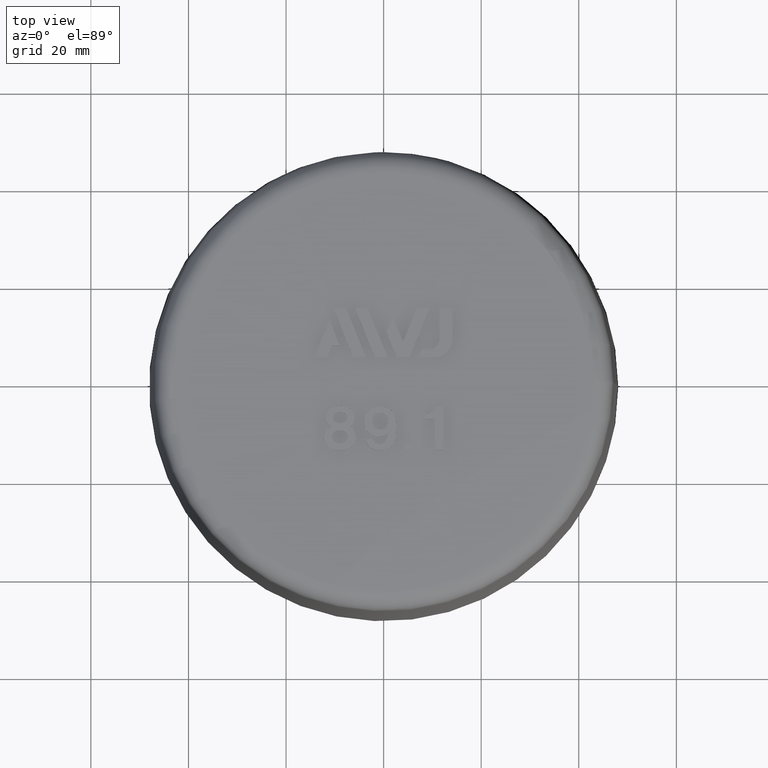
[diagram: clean part render]
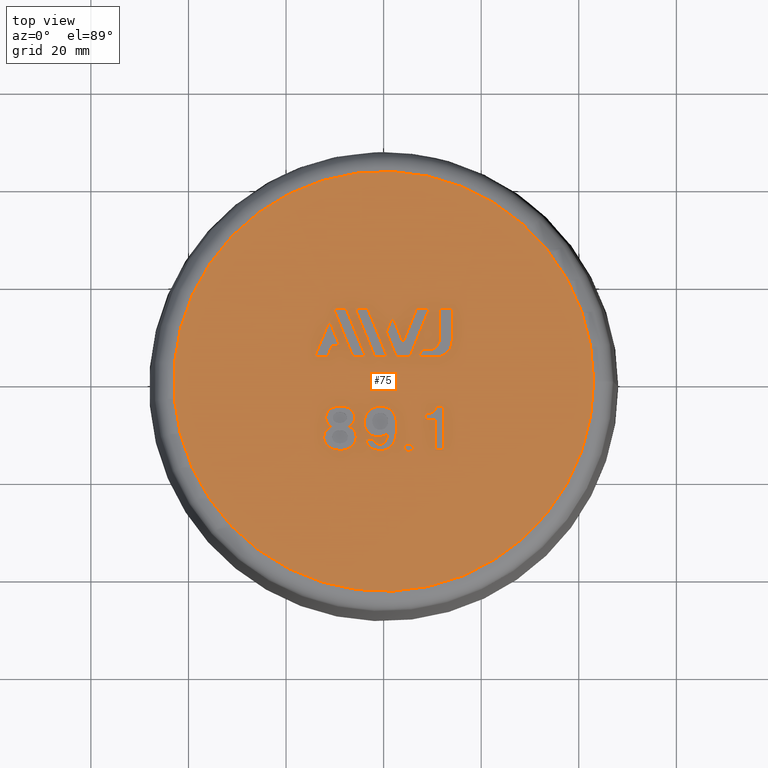
[diagram: same view with one face highlighted and labeled with its STEP entity id]
A machine part, top view. The second image highlights one B-rep face of the part: STEP entity #75.
In plain terms, the highlighted planar face has unit normal (0, 0, -1).
Its self-contained STEP definition (entity closure, byte-faithful):
#75 = ADVANCED_FACE( '', ( #141, #142, #143, #144, #145, #146, #147, #148, #149, #150 ), #151, .F. );
#141 = FACE_BOUND( '', #292, .T. );
#142 = FACE_BOUND( '', #293, .T. );
#143 = FACE_BOUND( '', #294, .T. );
#144 = FACE_BOUND( '', #295, .T. );
#145 = FACE_BOUND( '', #296, .T. );
#146 = FACE_OUTER_BOUND( '', #297, .T. );
#147 = FACE_BOUND( '', #298, .T. );
#148 = FACE_BOUND( '', #299, .T. );
#149 = FACE_BOUND( '', #300, .T. );
#150 = FACE_BOUND( '', #301, .T. );
#151 = PLANE( '', #302 );
#292 = EDGE_LOOP( '', ( #454, #455, #456, #457, #458, #459, #460 ) );
#293 = EDGE_LOOP( '', ( #461 ) );
#294 = EDGE_LOOP( '', ( #462, #463, #464, #465 ) );
#295 = EDGE_LOOP( '', ( #466, #467, #468, #469 ) );
#296 = EDGE_LOOP( '', ( #470, #471, #472, #473, #474, #475, #476 ) );
#297 = EDGE_LOOP( '', ( #477 ) );
#298 = EDGE_LOOP( '', ( #478, #479, #480, #481, #482, #483, #484, #485 ) );
#299 = EDGE_LOOP( '', ( #486, #487, #488, #489 ) );
#300 = EDGE_LOOP( '', ( #490, #491, #492, #493, #494 ) );
#301 = EDGE_LOOP( '', ( #495, #496, #497 ) );
#302 = AXIS2_PLACEMENT_3D( '', #498, #499, #500 );
#454 = ORIENTED_EDGE( '', *, *, #1052, .T. );
#455 = ORIENTED_EDGE( '', *, *, #1053, .T. );
#456 = ORIENTED_EDGE( '', *, *, #1054, .T. );
#457 = ORIENTED_EDGE( '', *, *, #1055, .T. );
#458 = ORIENTED_EDGE( '', *, *, #1056, .T. );
#459 = ORIENTED_EDGE( '', *, *, #1057, .T. );
#460 = ORIENTED_EDGE( '', *, *, #1058, .T. );
#461 = ORIENTED_EDGE( '', *, *, #1059, .T. );
#462 = ORIENTED_EDGE( '', *, *, #1060, .T. );
#463 = ORIENTED_EDGE( '', *, *, #1061, .T. );
#464 = ORIENTED_EDGE( '', *, *, #1062, .T. );
#465 = ORIENTED_EDGE( '', *, *, #1063, .T. );
#466 = ORIENTED_EDGE( '', *, *, #1064, .F. );
#467 = ORIENTED_EDGE( '', *, *, #1065, .F. );
#468 = ORIENTED_EDGE( '', *, *, #1066, .F. );
#469 = ORIENTED_EDGE( '', *, *, #1067, .F. );
#470 = ORIENTED_EDGE( '', *, *, #1068, .F. );
#471 = ORIENTED_EDGE( '', *, *, #1069, .F. );
#472 = ORIENTED_EDGE( '', *, *, #1070, .F. );
#473 = ORIENTED_EDGE( '', *, *, #1071, .F. );
#474 = ORIENTED_EDGE( '', *, *, #1072, .F. );
#475 = ORIENTED_EDGE( '', *, *, #1073, .F. );
#476 = ORIENTED_EDGE( '', *, *, #1074, .F. );
#477 = ORIENTED_EDGE( '', *, *, #1075, .T. );
#478 = ORIENTED_EDGE( '', *, *, #1076, .F. );
#479 = ORIENTED_EDGE( '', *, *, #1077, .F. );
#480 = ORIENTED_EDGE( '', *, *, #1078, .F. );
#481 = ORIENTED_EDGE( '', *, *, #1079, .F. );
#482 = ORIENTED_EDGE( '', *, *, #1080, .F. );
#483 = ORIENTED_EDGE( '', *, *, #1081, .F. );
#484 = ORIENTED_EDGE( '', *, *, #1082, .F. );
#485 = ORIENTED_EDGE( '', *, *, #1083, .F. );
#486 = ORIENTED_EDGE( '', *, *, #1084, .F. );
#487 = ORIENTED_EDGE( '', *, *, #1085, .F. );
#488 = ORIENTED_EDGE( '', *, *, #1086, .F. );
#489 = ORIENTED_EDGE( '', *, *, #1087, .F. );
#490 = ORIENTED_EDGE( '', *, *, #1088, .F. );
#491 = ORIENTED_EDGE( '', *, *, #1089, .F. );
#492 = ORIENTED_EDGE( '', *, *, #1090, .F. );
#493 = ORIENTED_EDGE( '', *, *, #1091, .F. );
#494 = ORIENTED_EDGE( '', *, *, #1092, .F. );
#495 = ORIENTED_EDGE( '', *, *, #1093, .T. );
#496 = ORIENTED_EDGE( '', *, *, #1094, .T. );
#497 = ORIENTED_EDGE( '', *, *, #1095, .T. );
#498 = CARTESIAN_POINT( '', ( -3.85751001454049E-015, 43.0436507890378, 63.0000000000000 ) );
#499 = DIRECTION( '', ( 6.12303176911189E-017, 0.000000000000000, -1.00000000000000 ) );
#500 = DIRECTION( '', ( -1.00000000000000, 0.000000000000000, -6.12303176911189E-017 ) );
#1052 = EDGE_CURVE( '', #1192, #1193, #1194, .T. );
#1053 = EDGE_CURVE( '', #1193, #1195, #1196, .T. );
#1054 = EDGE_CURVE( '', #1195, #1197, #1198, .T. );
#1055 = EDGE_CURVE( '', #1197, #1199, #1200, .T. );
#1056 = EDGE_CURVE( '', #1199, #1201, #1202, .T. );
#1057 = EDGE_CURVE( '', #1201, #1203, #1204, .T. );
#1058 = EDGE_CURVE( '', #1203, #1192, #1205, .T. );
#1059 = EDGE_CURVE( '', #1206, #1206, #1207, .T. );
#1060 = EDGE_CURVE( '', #1208, #1209, #1210, .T. );
#1061 = EDGE_CURVE( '', #1209, #1211, #1212, .T. );
#1062 = EDGE_CURVE( '', #1211, #1213, #1214, .T. );
#1063 = EDGE_CURVE( '', #1213, #1208, #1215, .T. );
#1064 = EDGE_CURVE( '', #1216, #1217, #1218, .T. );
#1065 = EDGE_CURVE( '', #1219, #1216, #1220, .T. );
#1066 = EDGE_CURVE( '', #1221, #1219, #1222, .T. );
#1067 = EDGE_CURVE( '', #1217, #1221, #1223, .T. );
#1068 = EDGE_CURVE( '', #1224, #1225, #1226, .T. );
#1069 = EDGE_CURVE( '', #1227, #1224, #1228, .T. );
#1070 = EDGE_CURVE( '', #1229, #1227, #1230, .T. );
#1071 = EDGE_CURVE( '', #1231, #1229, #1232, .T. );
#1072 = EDGE_CURVE( '', #1233, #1231, #1234, .T. );
#1073 = EDGE_CURVE( '', #1235, #1233, #1236, .T. );
#1074 = EDGE_CURVE( '', #1225, #1235, #1237, .T. );
#1075 = EDGE_CURVE( '', #1238, #1238, #1239, .T. );
#1076 = EDGE_CURVE( '', #1240, #1241, #1242, .T. );
#1077 = EDGE_CURVE( '', #1243, #1240, #1244, .T. );
#1078 = EDGE_CURVE( '', #1245, #1243, #1246, .T. );
#1079 = EDGE_CURVE( '', #1247, #1245, #1248, .T. );
#1080 = EDGE_CURVE( '', #1249, #1247, #1250, .T. );
#1081 = EDGE_CURVE( '', #1251, #1249, #1252, .T. );
#1082 = EDGE_CURVE( '', #1253, #1251, #1254, .T. );
#1083 = EDGE_CURVE( '', #1241, #1253, #1255, .T. );
#1084 = EDGE_CURVE( '', #1256, #1257, #1258, .T. );
#1085 = EDGE_CURVE( '', #1259, #1256, #1260, .T. );
#1086 = EDGE_CURVE( '', #1261, #1259, #1262, .T. );
#1087 = EDGE_CURVE( '', #1257, #1261, #1263, .T. );
#1088 = EDGE_CURVE( '', #1264, #1265, #1266, .T. );
#1089 = EDGE_CURVE( '', #1267, #1264, #1268, .T. );
#1090 = EDGE_CURVE( '', #1269, #1267, #1270, .T. );
#1091 = EDGE_CURVE( '', #1271, #1269, #1272, .T. );
#1092 = EDGE_CURVE( '', #1265, #1271, #1273, .T. );
#1093 = EDGE_CURVE( '', #1274, #1275, #1276, .T. );
#1094 = EDGE_CURVE( '', #1275, #1277, #1278, .T. );
#1095 = EDGE_CURVE( '', #1277, #1274, #1279, .T. );
#1192 = VERTEX_POINT( '', #1430 );
#1193 = VERTEX_POINT( '', #1431 );
#1194 = B_SPLINE_CURVE_WITH_KNOTS( '', 2, ( #1432, #1433, #1434 ), .UNSPECIFIED., .F., .F., ( 3, 3 ), ( 7.00000000000000, 8.00000000000000 ), .UNSPECIFIED. );
#1195 = VERTEX_POINT( '', #1435 );
#1196 = B_SPLINE_CURVE_WITH_KNOTS( '', 2, ( #1436, #1437, #1438 ), .UNSPECIFIED., .F., .F., ( 3, 3 ), ( 0.000000000000000, 1.00000000000000 ), .UNSPECIFIED. );
#1197 = VERTEX_POINT( '', #1439 );
#1198 = B_SPLINE_CURVE_WITH_KNOTS( '', 2, ( #1440, #1441, #1442, #1443, #1444 ), .UNSPECIFIED., .F., .F., ( 3, 2, 3 ), ( 1.00000000000000, 2.00000000000000, 3.00000000000000 ), .UNSPECIFIED. );
#1199 = VERTEX_POINT( '', #1445 );
#1200 = B_SPLINE_CURVE_WITH_KNOTS( '', 2, ( #1446, #1447, #1448 ), .UNSPECIFIED., .F., .F., ( 3, 3 ), ( 3.00000000000000, 4.00000000000000 ), .UNSPECIFIED. );
#1201 = VERTEX_POINT( '', #1449 );
#1202 = B_SPLINE_CURVE_WITH_KNOTS( '', 2, ( #1450, #1451, #1452 ), .UNSPECIFIED., .F., .F., ( 3, 3 ), ( 4.00000000000000, 5.00000000000000 ), .UNSPECIFIED. );
#1203 = VERTEX_POINT( '', #1453 );
#1204 = B_SPLINE_CURVE_WITH_KNOTS( '', 2, ( #1454, #1455, #1456 ), .UNSPECIFIED., .F., .F., ( 3, 3 ), ( 5.00000000000000, 6.00000000000000 ), .UNSPECIFIED. );
#1205 = B_SPLINE_CURVE_WITH_KNOTS( '', 2, ( #1457, #1458, #1459 ), .UNSPECIFIED., .F., .F., ( 3, 3 ), ( 6.00000000000000, 7.00000000000000 ), .UNSPECIFIED. );
#1206 = VERTEX_POINT( '', #1460 );
#1207 = B_SPLINE_CURVE_WITH_KNOTS( '', 2, ( #1461, #1462, #1463, #1464, #1465, #1466, #1467, #1468, #1469, #1470, #1471, #1472, #1473, #1474, #1475, #1476, #1477 ), .UNSPECIFIED., .T., .F., ( 3, 2, 2, 2, 2, 2, 2, 2, 3 ), ( 0.000000000000000, 1.00000000000000, 2.00000000000000, 3.00000000000000, 4.00000000000000, 5.00000000000000, 6.00000000000000, 7.00000000000000, 8.00000000000000 ), .UNSPECIFIED. );
#1208 = VERTEX_POINT( '', #1478 );
#1209 = VERTEX_POINT( '', #1479 );
#1210 = B_SPLINE_CURVE_WITH_KNOTS( '', 2, ( #1480, #1481, #1482, #1483, #1484, #1485, #1486, #1487, #1488, #1489, #1490, #1491, #1492, #1493, #1494, #1495, #1496, #1497, #1498, #1499, #1500, #1501, #1502, #1503, #1504 ), .UNSPECIFIED., .F., .F., ( 3, 2, 2, 2, 2, 2, 2, 2, 2, 2, 2, 2, 3 ), ( 6.00000000000000, 7.00000000000000, 8.00000000000000, 9.00000000000000, 10.0000000000000, 11.0000000000000, 12.0000000000000, 13.0000000000000, 14.0000000000000, 15.0000000000000, 16.0000000000000, 17.0000000000000, 18.0000000000000 ), .UNSPECIFIED. );
#1211 = VERTEX_POINT( '', #1505 );
#1212 = B_SPLINE_CURVE_WITH_KNOTS( '', 2, ( #1506, #1507, #1508 ), .UNSPECIFIED., .F., .F., ( 3, 3 ), ( 0.000000000000000, 1.00000000000000 ), .UNSPECIFIED. );
#1213 = VERTEX_POINT( '', #1509 );
#1214 = B_SPLINE_CURVE_WITH_KNOTS( '', 2, ( #1510, #1511, #1512 ), .UNSPECIFIED., .F., .F., ( 3, 3 ), ( 1.00000000000000, 2.00000000000000 ), .UNSPECIFIED. );
#1215 = B_SPLINE_CURVE_WITH_KNOTS( '', 2, ( #1513, #1514, #1515, #1516, #1517, #1518, #1519, #1520, #1521 ), .UNSPECIFIED., .F., .F., ( 3, 2, 2, 2, 3 ), ( 2.00000000000000, 3.00000000000000, 4.00000000000000, 5.00000000000000, 6.00000000000000 ), .UNSPECIFIED. );
#1216 = VERTEX_POINT( '', #1522 );
#1217 = VERTEX_POINT( '', #1523 );
#1218 = LINE( '', #1524, #1525 );
#1219 = VERTEX_POINT( '', #1526 );
#1220 = LINE( '', #1527, #1528 );
#1221 = VERTEX_POINT( '', #1529 );
#1222 = LINE( '', #1530, #1531 );
#1223 = LINE( '', #1532, #1533 );
#1224 = VERTEX_POINT( '', #1534 );
#1225 = VERTEX_POINT( '', #1535 );
#1226 = LINE( '', #1536, #1537 );
#1227 = VERTEX_POINT( '', #1538 );
#1228 = LINE( '', #1539, #1540 );
#1229 = VERTEX_POINT( '', #1541 );
#1230 = LINE( '', #1542, #1543 );
#1231 = VERTEX_POINT( '', #1544 );
#1232 = LINE( '', #1545, #1546 );
#1233 = VERTEX_POINT( '', #1547 );
#1234 = LINE( '', #1548, #1549 );
#1235 = VERTEX_POINT( '', #1550 );
#1236 = LINE( '', #1551, #1552 );
#1237 = LINE( '', #1553, #1554 );
#1238 = VERTEX_POINT( '', #1555 );
#1239 = CIRCLE( '', #1556, 43.0436507890378 );
#1240 = VERTEX_POINT( '', #1557 );
#1241 = VERTEX_POINT( '', #1558 );
#1242 = LINE( '', #1559, #1560 );
#1243 = VERTEX_POINT( '', #1561 );
#1244 = LINE( '', #1562, #1563 );
#1245 = VERTEX_POINT( '', #1564 );
#1246 = LINE( '', #1565, #1566 );
#1247 = VERTEX_POINT( '', #1567 );
#1248 = CIRCLE( '', #1568, 3.33633300000000 );
#1249 = VERTEX_POINT( '', #1569 );
#1250 = LINE( '', #1570, #1571 );
#1251 = VERTEX_POINT( '', #1572 );
#1252 = LINE( '', #1573, #1574 );
#1253 = VERTEX_POINT( '', #1575 );
#1254 = LINE( '', #1576, #1577 );
#1255 = CIRCLE( '', #1578, 2.22422200000000 );
#1256 = VERTEX_POINT( '', #1579 );
#1257 = VERTEX_POINT( '', #1580 );
#1258 = LINE( '', #1581, #1582 );
#1259 = VERTEX_POINT( '', #1583 );
#1260 = LINE( '', #1584, #1585 );
#1261 = VERTEX_POINT( '', #1586 );
#1262 = LINE( '', #1587, #1588 );
#1263 = LINE( '', #1589, #1590 );
#1264 = VERTEX_POINT( '', #1591 );
#1265 = VERTEX_POINT( '', #1592 );
#1266 = LINE( '', #1593, #1594 );
#1267 = VERTEX_POINT( '', #1595 );
#1268 = LINE( '', #1596, #1597 );
#1269 = VERTEX_POINT( '', #1598 );
#1270 = LINE( '', #1599, #1600 );
#1271 = VERTEX_POINT( '', #1601 );
#1272 = LINE( '', #1602, #1603 );
#1273 = LINE( '', #1604, #1605 );
#1274 = VERTEX_POINT( '', #1606 );
#1275 = VERTEX_POINT( '', #1607 );
#1276 = B_SPLINE_CURVE_WITH_KNOTS( '', 2, ( #1608, #1609, #1610, #1611, #1612, #1613, #1614, #1615, #1616, #1617, #1618, #1619, #1620, #1621, #1622 ), .UNSPECIFIED., .F., .F., ( 3, 2, 2, 2, 2, 2, 2, 3 ), ( 9.00000000000000, 10.0000000000000, 11.0000000000000, 12.0000000000000, 13.0000000000000, 14.0000000000000, 15.0000000000000, 16.0000000000000 ), .UNSPECIFIED. );
#1277 = VERTEX_POINT( '', #1623 );
#1278 = B_SPLINE_CURVE_WITH_KNOTS( '', 2, ( #1624, #1625, #1626 ), .UNSPECIFIED., .F., .F., ( 3, 3 ), ( 0.000000000000000, 1.00000000000000 ), .UNSPECIFIED. );
#1279 = B_SPLINE_CURVE_WITH_KNOTS( '', 2, ( #1627, #1628, #1629, #1630, #1631, #1632, #1633, #1634, #1635, #1636, #1637, #1638, #1639, #1640, #1641, #1642, #1643 ), .UNSPECIFIED., .F., .F., ( 3, 2, 2, 2, 2, 2, 2, 2, 3 ), ( 1.00000000000000, 2.00000000000000, 3.00000000000000, 4.00000000000000, 5.00000000000000, 6.00000000000000, 7.00000000000000, 8.00000000000000, 9.00000000000000 ), .UNSPECIFIED. );
#1430 = CARTESIAN_POINT( '', ( 10.5170667613636, -7.78702583440734, 63.0000000000000 ) );
#1431 = CARTESIAN_POINT( '', ( 8.49615767045454, -7.78702583440734, 63.0000000000000 ) );
#1432 = CARTESIAN_POINT( '', ( 10.5170667613636, -7.78702583440734, 63.0000000000000 ) );
#1433 = CARTESIAN_POINT( '', ( 9.50661221590908, -7.78702583440734, 63.0000000000000 ) );
#1434 = CARTESIAN_POINT( '', ( 8.49615767045454, -7.78702583440734, 63.0000000000000 ) );
#1435 = CARTESIAN_POINT( '', ( 8.49615767045454, -6.70748037986188, 63.0000000000000 ) );
#1436 = CARTESIAN_POINT( '', ( 8.49615767045454, -7.78702583440734, 63.0000000000000 ) );
#1437 = CARTESIAN_POINT( '', ( 8.49615767045454, -7.24725310713461, 63.0000000000000 ) );
#1438 = CARTESIAN_POINT( '', ( 8.49615767045454, -6.70748037986188, 63.0000000000000 ) );
#1439 = CARTESIAN_POINT( '', ( 10.8279758522727, -5.19611674349825, 63.0000000000000 ) );
#1440 = CARTESIAN_POINT( '', ( 8.49615767045454, -6.70748037986188, 63.0000000000000 ) );
#1441 = CARTESIAN_POINT( '', ( 9.58433948863636, -6.62111674349825, 63.0000000000000 ) );
#1442 = CARTESIAN_POINT( '', ( 10.0133523013270, -6.38873480329080, 63.0000000000000 ) );
#1443 = CARTESIAN_POINT( '', ( 10.6207031250000, -6.05975310713461, 63.0000000000000 ) );
#1444 = CARTESIAN_POINT( '', ( 10.8279758522727, -5.19611674349825, 63.0000000000000 ) );
#1445 = CARTESIAN_POINT( '', ( 12.2788849431818, -5.19611674349825, 63.0000000000000 ) );
#1446 = CARTESIAN_POINT( '', ( 10.8279758522727, -5.19611674349825, 63.0000000000000 ) );
#1447 = CARTESIAN_POINT( '', ( 11.5534303977273, -5.19611674349825, 63.0000000000000 ) );
#1448 = CARTESIAN_POINT( '', ( 12.2788849431818, -5.19611674349825, 63.0000000000000 ) );
#1449 = CARTESIAN_POINT( '', ( 12.2788849431818, -14.0915712889528, 63.0000000000000 ) );
#1450 = CARTESIAN_POINT( '', ( 12.2788849431818, -5.19611674349825, 63.0000000000000 ) );
#1451 = CARTESIAN_POINT( '', ( 12.2788849431818, -9.64384401622552, 63.0000000000000 ) );
#1452 = CARTESIAN_POINT( '', ( 12.2788849431818, -14.0915712889528, 63.0000000000000 ) );
#1453 = CARTESIAN_POINT( '', ( 10.5170667613636, -14.0915712889528, 63.0000000000000 ) );
#1454 = CARTESIAN_POINT( '', ( 12.2788849431818, -14.0915712889528, 63.0000000000000 ) );
#1455 = CARTESIAN_POINT( '', ( 11.3979758522727, -14.0915712889528, 63.0000000000000 ) );
#1456 = CARTESIAN_POINT( '', ( 10.5170667613636, -14.0915712889528, 63.0000000000000 ) );
#1457 = CARTESIAN_POINT( '', ( 10.5170667613636, -14.0915712889528, 63.0000000000000 ) );
#1458 = CARTESIAN_POINT( '', ( 10.5170667613636, -10.9392985616801, 63.0000000000000 ) );
#1459 = CARTESIAN_POINT( '', ( 10.5170667613636, -7.78702583440734, 63.0000000000000 ) );
#1460 = CARTESIAN_POINT( '', ( 5.12797585227272, -12.8392985616801, 63.0000000000000 ) );
#1461 = CARTESIAN_POINT( '', ( 5.12797585227272, -12.8392985616801, 63.0000000000000 ) );
#1462 = CARTESIAN_POINT( '', ( 5.49070312500000, -12.8392985616801, 63.0000000000000 ) );
#1463 = CARTESIAN_POINT( '', ( 5.80161221590908, -13.0983894707710, 63.0000000000000 ) );
#1464 = CARTESIAN_POINT( '', ( 6.06070312499999, -13.3142985616801, 63.0000000000000 ) );
#1465 = CARTESIAN_POINT( '', ( 6.06070312500000, -13.6165712889528, 63.0000000000000 ) );
#1466 = CARTESIAN_POINT( '', ( 6.06070312499999, -13.9188440162255, 63.0000000000000 ) );
#1467 = CARTESIAN_POINT( '', ( 5.80161221590908, -14.1347531071346, 63.0000000000000 ) );
#1468 = CARTESIAN_POINT( '', ( 5.49070312499999, -14.3938440162255, 63.0000000000000 ) );
#1469 = CARTESIAN_POINT( '', ( 5.12797585227272, -14.3938440162255, 63.0000000000000 ) );
#1470 = CARTESIAN_POINT( '', ( 4.76524857954545, -14.3938440162255, 63.0000000000000 ) );
#1471 = CARTESIAN_POINT( '', ( 4.45433948863636, -14.1347531071346, 63.0000000000000 ) );
#1472 = CARTESIAN_POINT( '', ( 4.19524857954545, -13.9188440162255, 63.0000000000000 ) );
#1473 = CARTESIAN_POINT( '', ( 4.19524857954545, -13.6165712889528, 63.0000000000000 ) );
#1474 = CARTESIAN_POINT( '', ( 4.19524857954545, -13.3142985616801, 63.0000000000000 ) );
#1475 = CARTESIAN_POINT( '', ( 4.45433948863636, -13.0983894707710, 63.0000000000000 ) );
#1476 = CARTESIAN_POINT( '', ( 4.76524857954545, -12.8392985616801, 63.0000000000000 ) );
#1477 = CARTESIAN_POINT( '', ( 5.12797585227272, -12.8392985616801, 63.0000000000000 ) );
#1478 = CARTESIAN_POINT( '', ( 0.930703124999992, -10.5938440162255, 63.0000000000000 ) );
#1479 = CARTESIAN_POINT( '', ( -2.64292426312669, -13.6138914582053, 63.0000000000000 ) );
#1480 = CARTESIAN_POINT( '', ( 0.930703124999992, -10.5938440162255, 63.0000000000000 ) );
#1481 = CARTESIAN_POINT( '', ( 0.205248579545448, -11.3711167434982, 63.0000000000000 ) );
#1482 = CARTESIAN_POINT( '', ( -1.24548797579710, -11.3227588583202, 63.0000000000000 ) );
#1483 = CARTESIAN_POINT( '', ( -2.38566051136364, -11.2847531071346, 63.0000000000000 ) );
#1484 = CARTESIAN_POINT( '', ( -3.14828464262923, -10.5357472639273, 63.0000000000000 ) );
#1485 = CARTESIAN_POINT( '', ( -3.83656960227273, -9.85975310713461, 63.0000000000000 ) );
#1486 = CARTESIAN_POINT( '', ( -3.93378512634208, -8.82278751706157, 63.0000000000000 ) );
#1487 = CARTESIAN_POINT( '', ( -4.09566051136364, -7.09611674349825, 63.0000000000000 ) );
#1488 = CARTESIAN_POINT( '', ( -3.05929687500000, -6.01657128895279, 63.0000000000000 ) );
#1489 = CARTESIAN_POINT( '', ( -2.23020596590910, -5.15293492531643, 63.0000000000000 ) );
#1490 = CARTESIAN_POINT( '', ( -0.675360695461125, -5.13133985211576, 63.0000000000000 ) );
#1491 = CARTESIAN_POINT( '', ( 0.878884943181813, -5.10975310713461, 63.0000000000000 ) );
#1492 = CARTESIAN_POINT( '', ( 1.75979403409090, -6.05975310713461, 63.0000000000000 ) );
#1493 = CARTESIAN_POINT( '', ( 2.64070312499999, -7.00975310713461, 63.0000000000000 ) );
#1494 = CARTESIAN_POINT( '', ( 2.64070312499999, -8.82338947077097, 63.0000000000000 ) );
#1495 = CARTESIAN_POINT( '', ( 2.64070312499999, -9.14725310713461, 63.0000000000000 ) );
#1496 = CARTESIAN_POINT( '', ( 2.64070312499999, -9.47111674349825, 63.0000000000000 ) );
#1497 = CARTESIAN_POINT( '', ( 2.64070312499999, -10.8961167434982, 63.0000000000000 ) );
#1498 = CARTESIAN_POINT( '', ( 2.38057143574472, -11.8026362666606, 63.0000000000000 ) );
#1499 = CARTESIAN_POINT( '', ( 2.07070312499999, -12.8824803798619, 63.0000000000000 ) );
#1500 = CARTESIAN_POINT( '', ( 1.29343039772727, -13.5302076525892, 63.0000000000000 ) );
#1501 = CARTESIAN_POINT( '', ( 0.516157670454540, -14.1779349253164, 63.0000000000000 ) );
#1502 = CARTESIAN_POINT( '', ( -0.675660511363641, -14.1779349253164, 63.0000000000000 ) );
#1503 = CARTESIAN_POINT( '', ( -1.81566051136364, -14.1779349253164, 63.0000000000000 ) );
#1504 = CARTESIAN_POINT( '', ( -2.64292426312669, -13.6138914582053, 63.0000000000000 ) );
#1505 = CARTESIAN_POINT( '', ( -3.73293323863637, -11.8892985616801, 63.0000000000000 ) );
#1506 = CARTESIAN_POINT( '', ( -2.64292426312669, -13.6138914582053, 63.0000000000000 ) );
#1507 = CARTESIAN_POINT( '', ( -3.52566051136364, -13.0120258344073, 63.0000000000000 ) );
#1508 = CARTESIAN_POINT( '', ( -3.73293323863637, -11.8892985616801, 63.0000000000000 ) );
#1509 = CARTESIAN_POINT( '', ( -2.07475142045455, -11.8892985616801, 63.0000000000000 ) );
#1510 = CARTESIAN_POINT( '', ( -3.73293323863637, -11.8892985616801, 63.0000000000000 ) );
#1511 = CARTESIAN_POINT( '', ( -2.90384232954546, -11.8892985616801, 63.0000000000000 ) );
#1512 = CARTESIAN_POINT( '', ( -2.07475142045455, -11.8892985616801, 63.0000000000000 ) );
#1513 = CARTESIAN_POINT( '', ( -2.07475142045455, -11.8892985616801, 63.0000000000000 ) );
#1514 = CARTESIAN_POINT( '', ( -1.97111505681819, -12.4074803798619, 63.0000000000000 ) );
#1515 = CARTESIAN_POINT( '', ( -1.55887200285937, -12.6701842867964, 63.0000000000000 ) );
#1516 = CARTESIAN_POINT( '', ( -1.09020596590910, -12.9688440162255, 63.0000000000000 ) );
#1517 = CARTESIAN_POINT( '', ( -0.519672966713269, -12.8861580743131, 63.0000000000000 ) );
#1518 = CARTESIAN_POINT( '', ( 0.101612215909086, -12.7961167434982, 63.0000000000000 ) );
#1519 = CARTESIAN_POINT( '', ( 0.511920862254175, -12.0596653269814, 63.0000000000000 ) );
#1520 = CARTESIAN_POINT( '', ( 0.775248579545449, -11.5870258344073, 63.0000000000000 ) );
#1521 = CARTESIAN_POINT( '', ( 0.930703124999992, -10.5938440162255, 63.0000000000000 ) );
#1522 = CARTESIAN_POINT( '', ( -3.68691820797300, 4.99370193831994, 63.0000000000000 ) );
#1523 = CARTESIAN_POINT( '', ( -7.72829065808800, 14.9953787994960, 63.0000000000000 ) );
#1524 = CARTESIAN_POINT( '', ( -3.68691820797300, 4.99370193831993, 63.0000000000000 ) );
#1525 = VECTOR( '', #2058, 1000.00000000000 );
#1526 = CARTESIAN_POINT( '', ( -6.27123507710702, 4.99370193831993, 63.0000000000000 ) );
#1527 = CARTESIAN_POINT( '', ( -6.27123507710701, 4.99370193831994, 63.0000000000000 ) );
#1528 = VECTOR( '', #2059, 1000.00000000000 );
#1529 = CARTESIAN_POINT( '', ( -10.3120392385010, 14.9953787994960, 63.0000000000000 ) );
#1530 = CARTESIAN_POINT( '', ( -10.3120392385010, 14.9953787994960, 63.0000000000000 ) );
#1531 = VECTOR( '', #2060, 1000.00000000000 );
#1532 = CARTESIAN_POINT( '', ( -7.72829065808800, 14.9953787994960, 63.0000000000000 ) );
#1533 = VECTOR( '', #2061, 1000.00000000000 );
#1534 = CARTESIAN_POINT( '', ( 9.38976224986800, 14.9953787994960, 63.0000000000000 ) );
#1535 = CARTESIAN_POINT( '', ( 6.80522740697799, 14.9953787994960, 63.0000000000000 ) );
#1536 = CARTESIAN_POINT( '', ( 9.38976224986799, 14.9953787994960, 63.0000000000000 ) );
#1537 = VECTOR( '', #2062, 1000.00000000000 );
#1538 = CARTESIAN_POINT( '', ( 5.34902481513398, 4.99370193831994, 63.0000000000000 ) );
#1539 = CARTESIAN_POINT( '', ( 5.34902481513398, 4.99370193831994, 63.0000000000000 ) );
#1540 = VECTOR( '', #2063, 1000.00000000000 );
#1541 = CARTESIAN_POINT( '', ( 2.61693174843099, 4.99370193831994, 63.0000000000000 ) );
#1542 = CARTESIAN_POINT( '', ( 2.61693174843099, 4.99370193831994, 63.0000000000000 ) );
#1543 = VECTOR( '', #2064, 1000.00000000000 );
#1544 = CARTESIAN_POINT( '', ( 0.557827092822992, 10.0892755444430, 63.0000000000000 ) );
#1545 = CARTESIAN_POINT( '', ( 0.557827092822999, 10.0892755444430, 63.0000000000000 ) );
#1546 = VECTOR( '', #2065, 1000.00000000000 );
#1547 = CARTESIAN_POINT( '', ( 1.85009451426800, 13.2883095446050, 63.0000000000000 ) );
#1548 = CARTESIAN_POINT( '', ( 1.85009451426799, 13.2883095446050, 63.0000000000000 ) );
#1549 = VECTOR( '', #2066, 1000.00000000000 );
#1550 = CARTESIAN_POINT( '', ( 3.98269413742199, 8.01018402994295, 63.0000000000000 ) );
#1551 = CARTESIAN_POINT( '', ( 3.98269413742199, 8.01018402994295, 63.0000000000000 ) );
#1552 = VECTOR( '', #2067, 1000.00000000000 );
#1553 = CARTESIAN_POINT( '', ( 6.80522740697799, 14.9953787994960, 63.0000000000000 ) );
#1554 = VECTOR( '', #2068, 1000.00000000000 );
#1555 = CARTESIAN_POINT( '', ( 43.0436507890378, 0.000000000000000, 63.0000000000000 ) );
#1556 = AXIS2_PLACEMENT_3D( '', #2069, #2070, #2071 );
#1557 = CARTESIAN_POINT( '', ( 11.4411799942440, 14.9953787994960, 63.0000000000000 ) );
#1558 = CARTESIAN_POINT( '', ( 11.4411799942440, 8.67235716156296, 63.0000000000000 ) );
#1559 = CARTESIAN_POINT( '', ( 11.4411799942440, 14.9953787994960, 63.0000000000000 ) );
#1560 = VECTOR( '', #2072, 1000.00000000000 );
#1561 = CARTESIAN_POINT( '', ( 14.0550256346500, 14.9953787994960, 63.0000000000000 ) );
#1562 = CARTESIAN_POINT( '', ( 14.0550256346500, 14.9953787994960, 63.0000000000000 ) );
#1563 = VECTOR( '', #2073, 1000.00000000000 );
#1564 = CARTESIAN_POINT( '', ( 14.0550256346500, 8.33003493831994, 63.0000000000000 ) );
#1565 = CARTESIAN_POINT( '', ( 14.0550256346500, 8.33003493831994, 63.0000000000000 ) );
#1566 = VECTOR( '', #2074, 1000.00000000000 );
#1567 = CARTESIAN_POINT( '', ( 10.7186926346500, 4.99370193831993, 63.0000000000000 ) );
#1568 = AXIS2_PLACEMENT_3D( '', #2075, #2076, #2077 );
#1569 = CARTESIAN_POINT( '', ( 7.20866680233700, 4.99370193831993, 63.0000000000000 ) );
#1570 = CARTESIAN_POINT( '', ( 7.20866680233700, 4.99370193831993, 63.0000000000000 ) );
#1571 = VECTOR( '', #2078, 1000.00000000000 );
#1572 = CARTESIAN_POINT( '', ( 7.79629513362699, 6.44813516156295, 63.0000000000000 ) );
#1573 = CARTESIAN_POINT( '', ( 7.79629513362699, 6.44813516156295, 63.0000000000000 ) );
#1574 = VECTOR( '', #2079, 1000.00000000000 );
#1575 = CARTESIAN_POINT( '', ( 9.21695799424399, 6.44813516156295, 63.0000000000000 ) );
#1576 = CARTESIAN_POINT( '', ( 9.21695799424399, 6.44813516156295, 63.0000000000000 ) );
#1577 = VECTOR( '', #2080, 1000.00000000000 );
#1578 = AXIS2_PLACEMENT_3D( '', #2081, #2082, #2083 );
#1579 = CARTESIAN_POINT( '', ( 0.757290873338993, 4.99370193831993, 63.0000000000000 ) );
#1580 = CARTESIAN_POINT( '', ( -3.28408157677601, 14.9953787994960, 63.0000000000000 ) );
#1581 = CARTESIAN_POINT( '', ( 0.757290873338995, 4.99370193831993, 63.0000000000000 ) );
#1582 = VECTOR( '', #2084, 1000.00000000000 );
#1583 = CARTESIAN_POINT( '', ( -1.82721060622102, 4.99370193831993, 63.0000000000000 ) );
#1584 = CARTESIAN_POINT( '', ( -1.82721060622101, 4.99370193831993, 63.0000000000000 ) );
#1585 = VECTOR( '', #2085, 1000.00000000000 );
#1586 = CARTESIAN_POINT( '', ( -5.86858194422500, 14.9953787994960, 63.0000000000000 ) );
#1587 = CARTESIAN_POINT( '', ( -5.86858194422500, 14.9953787994960, 63.0000000000000 ) );
#1588 = VECTOR( '', #2086, 1000.00000000000 );
#1589 = CARTESIAN_POINT( '', ( -3.28408157677601, 14.9953787994960, 63.0000000000000 ) );
#1590 = VECTOR( '', #2087, 1000.00000000000 );
#1591 = CARTESIAN_POINT( '', ( -14.1319058680800, 4.99370193831994, 63.0000000000000 ) );
#1592 = CARTESIAN_POINT( '', ( -11.5481572876670, 4.99370193831994, 63.0000000000000 ) );
#1593 = CARTESIAN_POINT( '', ( -14.1319058680800, 4.99370193831994, 63.0000000000000 ) );
#1594 = VECTOR( '', #2088, 1000.00000000000 );
#1595 = CARTESIAN_POINT( '', ( -11.1025066071920, 12.4926953262059, 63.0000000000000 ) );
#1596 = CARTESIAN_POINT( '', ( -11.1025066071920, 12.4926953262059, 63.0000000000000 ) );
#1597 = VECTOR( '', #2089, 1000.00000000000 );
#1598 = CARTESIAN_POINT( '', ( -9.00698810111100, 7.30370773241594, 63.0000000000000 ) );
#1599 = CARTESIAN_POINT( '', ( -9.00698810111100, 7.30370773241594, 63.0000000000000 ) );
#1600 = VECTOR( '', #2090, 1000.00000000000 );
#1601 = CARTESIAN_POINT( '', ( -10.6141753307590, 7.30370773241595, 63.0000000000000 ) );
#1602 = CARTESIAN_POINT( '', ( -10.6141753307590, 7.30370773241594, 63.0000000000000 ) );
#1603 = VECTOR( '', #2091, 1000.00000000000 );
#1604 = CARTESIAN_POINT( '', ( -11.5481572876670, 4.99370193831994, 63.0000000000000 ) );
#1605 = VECTOR( '', #2092, 1000.00000000000 );
#1606 = CARTESIAN_POINT( '', ( -7.04929687500000, -9.25520765258915, 63.0000000000000 ) );
#1607 = CARTESIAN_POINT( '', ( -12.0152865873262, -10.4253288012062, 63.0000000000000 ) );
#1608 = CARTESIAN_POINT( '', ( -7.04929687500000, -9.25520765258915, 63.0000000000000 ) );
#1609 = CARTESIAN_POINT( '', ( -6.27202414772728, -9.55748037986188, 63.0000000000000 ) );
#1610 = CARTESIAN_POINT( '', ( -5.88674977716562, -10.3066249892873, 63.0000000000000 ) );
#1611 = CARTESIAN_POINT( '', ( -5.49475142045455, -11.0688440162255, 63.0000000000000 ) );
#1612 = CARTESIAN_POINT( '', ( -5.67711156031469, -11.9806447155262, 63.0000000000000 ) );
#1613 = CARTESIAN_POINT( '', ( -5.85747869318182, -12.8824803798619, 63.0000000000000 ) );
#1614 = CARTESIAN_POINT( '', ( -6.62337352607791, -13.4589603616116, 63.0000000000000 ) );
#1615 = CARTESIAN_POINT( '', ( -7.46384232954546, -14.0915712889528, 63.0000000000000 ) );
#1616 = CARTESIAN_POINT( '', ( -8.70758504797394, -14.1314348376204, 63.0000000000000 ) );
#1617 = CARTESIAN_POINT( '', ( -10.1583877840909, -14.1779349253164, 63.0000000000000 ) );
#1618 = CARTESIAN_POINT( '', ( -11.0852700220214, -13.5645569737448, 63.0000000000000 ) );
#1619 = CARTESIAN_POINT( '', ( -11.9202059659091, -13.0120258344073, 63.0000000000000 ) );
#1620 = CARTESIAN_POINT( '', ( -12.1674119709133, -12.1880058177268, 63.0000000000000 ) );
#1621 = CARTESIAN_POINT( '', ( -12.4383877840909, -11.2847531071346, 63.0000000000000 ) );
#1622 = CARTESIAN_POINT( '', ( -12.0152865873262, -10.4253288012062, 63.0000000000000 ) );
#1623 = CARTESIAN_POINT( '', ( -10.7283877840909, -9.29838947077097, 63.0000000000000 ) );
#1624 = CARTESIAN_POINT( '', ( -12.0152865873262, -10.4253288012062, 63.0000000000000 ) );
#1625 = CARTESIAN_POINT( '', ( -11.6092968750000, -9.60066219804370, 63.0000000000000 ) );
#1626 = CARTESIAN_POINT( '', ( -10.7283877840909, -9.29838947077097, 63.0000000000000 ) );
#1627 = CARTESIAN_POINT( '', ( -10.7283877840909, -9.29838947077097, 63.0000000000000 ) );
#1628 = CARTESIAN_POINT( '', ( -11.4020241477273, -8.95293492531643, 63.0000000000000 ) );
#1629 = CARTESIAN_POINT( '', ( -11.7046839132416, -8.30137570788967, 63.0000000000000 ) );
#1630 = CARTESIAN_POINT( '', ( -12.0238423295455, -7.61429856168006, 63.0000000000000 ) );
#1631 = CARTESIAN_POINT( '', ( -11.7384481882329, -6.71583552421464, 63.0000000000000 ) );
#1632 = CARTESIAN_POINT( '', ( -11.5574786931818, -6.14611674349825, 63.0000000000000 ) );
#1633 = CARTESIAN_POINT( '', ( -11.0392968750000, -5.71429856168006, 63.0000000000000 ) );
#1634 = CARTESIAN_POINT( '', ( -10.3138423295455, -5.10975310713461, 63.0000000000000 ) );
#1635 = CARTESIAN_POINT( '', ( -8.91475142045455, -5.10975310713461, 63.0000000000000 ) );
#1636 = CARTESIAN_POINT( '', ( -7.51566051136364, -5.10975310713461, 63.0000000000000 ) );
#1637 = CARTESIAN_POINT( '', ( -6.79020596590909, -5.71429856168006, 63.0000000000000 ) );
#1638 = CARTESIAN_POINT( '', ( -6.11656960227273, -6.27566219804370, 63.0000000000000 ) );
#1639 = CARTESIAN_POINT( '', ( -5.95661837016625, -7.00877201186509, 63.0000000000000 ) );
#1640 = CARTESIAN_POINT( '', ( -5.80566051136364, -7.70066219804370, 63.0000000000000 ) );
#1641 = CARTESIAN_POINT( '', ( -6.11202718359607, -8.35053089671854, 63.0000000000000 ) );
#1642 = CARTESIAN_POINT( '', ( -6.37566051136364, -8.90975310713461, 63.0000000000000 ) );
#1643 = CARTESIAN_POINT( '', ( -7.04929687500000, -9.25520765258915, 63.0000000000000 ) );
#2058 = DIRECTION( '', ( -0.374641075834904, 0.927169922019295, -6.88181762805413E-017 ) );
#2059 = DIRECTION( '', ( 1.00000000000000, -6.12303176911189E-017, 1.83690953073357E-016 ) );
#2060 = DIRECTION( '', ( 0.374595787424495, -0.927188220397468, 6.88098572092699E-017 ) );
#2061 = DIRECTION( '', ( -1.00000000000000, 6.12303176911189E-017, -1.83690953073357E-016 ) );
#2062 = DIRECTION( '', ( -1.00000000000000, 6.69494841509799E-017, -1.83690953073357E-016 ) );
#2063 = DIRECTION( '', ( 0.374590469627020, 0.927190368837278, 6.88088803779836E-017 ) );
#2064 = DIRECTION( '', ( 1.00000000000000, -1.14383329197221E-017, 1.83690953073357E-016 ) );
#2065 = DIRECTION( '', ( 0.374662791989133, -0.927161146888127, 6.88221653416087E-017 ) );
#2066 = DIRECTION( '', ( -0.374550228315492, -0.927206625552693, -6.88014884131161E-017 ) );
#2067 = DIRECTION( '', ( -0.374621466961798, 0.927177845125405, -6.88145743079516E-017 ) );
#2068 = DIRECTION( '', ( -0.374644407000048, -0.927168575990139, -6.88187881854414E-017 ) );
#2069 = CARTESIAN_POINT( '', ( -3.85751001454049E-015, 0.000000000000000, 63.0000000000000 ) );
#2070 = DIRECTION( '', ( -6.12303176911189E-017, 0.000000000000000, 1.00000000000000 ) );
#2071 = DIRECTION( '', ( 1.00000000000000, 0.000000000000000, 6.12303176911189E-017 ) );
#2072 = DIRECTION( '', ( -6.69494841509799E-017, -1.00000000000000, -4.79971094235239E-033 ) );
#2073 = DIRECTION( '', ( -1.00000000000000, 6.69494841509799E-017, -1.83690953073357E-016 ) );
#2074 = DIRECTION( '', ( 6.69494841509799E-017, 1.00000000000000, 4.79971094235240E-033 ) );
#2075 = CARTESIAN_POINT( '', ( 10.7186926346500, 8.33003493831994, 63.0000000000000 ) );
#2076 = DIRECTION( '', ( -6.12303176911189E-017, 0.000000000000000, 1.00000000000000 ) );
#2077 = DIRECTION( '', ( 1.00000000000000, 0.000000000000000, 6.12303176911189E-017 ) );
#2078 = DIRECTION( '', ( 1.00000000000000, -6.69494841509799E-017, 1.83690953073357E-016 ) );
#2079 = DIRECTION( '', ( -0.374606136016172, -0.927184039368147, -6.88117581519382E-017 ) );
#2080 = DIRECTION( '', ( -1.00000000000000, 6.69494841509799E-017, -1.83690953073357E-016 ) );
#2081 = CARTESIAN_POINT( '', ( 9.21695799424399, 8.67235716156296, 63.0000000000000 ) );
#2082 = DIRECTION( '', ( 6.12303176911189E-017, 0.000000000000000, -1.00000000000000 ) );
#2083 = DIRECTION( '', ( 1.00000000000000, 0.000000000000000, 6.12303176911189E-017 ) );
#2084 = DIRECTION( '', ( -0.374641075834904, 0.927169922019295, -6.88181762805413E-017 ) );
#2085 = DIRECTION( '', ( 1.00000000000000, -6.12303176911189E-017, 1.83690953073357E-016 ) );
#2086 = DIRECTION( '', ( 0.374640987210496, -0.927169957829710, 6.88181600010391E-017 ) );
#2087 = DIRECTION( '', ( -1.00000000000000, 6.12303176911189E-017, -1.83690953073357E-016 ) );
#2088 = DIRECTION( '', ( 1.00000000000000, -6.69494841509799E-017, 1.83690953073357E-016 ) );
#2089 = DIRECTION( '', ( -0.374565060835224, -0.927200633736574, -6.88042130128021E-017 ) );
#2090 = DIRECTION( '', ( -0.374457798873769, 0.927243957576760, -6.87845099608738E-017 ) );
#2091 = DIRECTION( '', ( 1.00000000000000, -1.14383329197221E-017, 1.83690953073357E-016 ) );
#2092 = DIRECTION( '', ( 0.374840859640758, 0.927089170438194, 6.88548747582471E-017 ) );